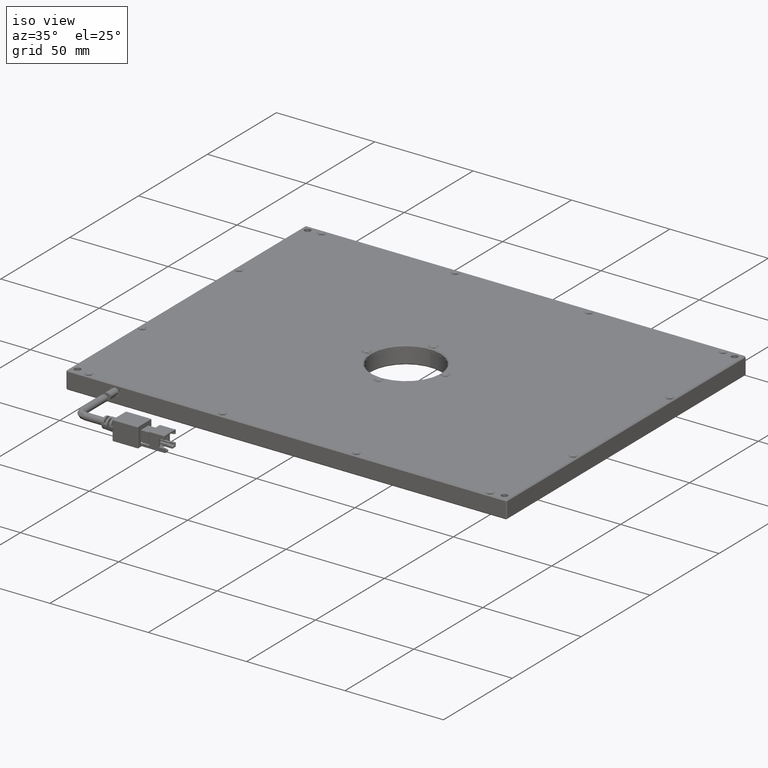
[diagram: clean part render]
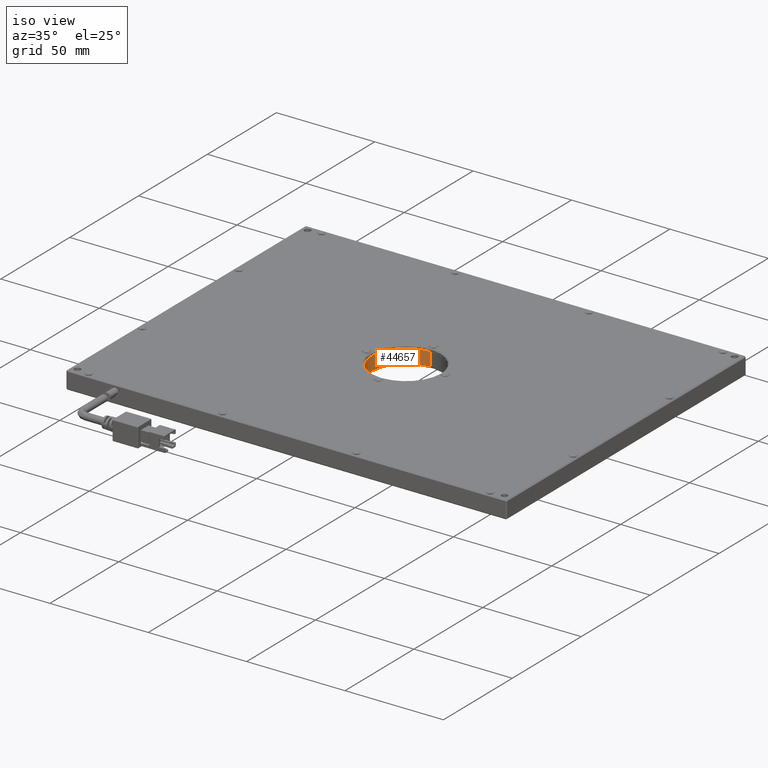
[diagram: same view with one face highlighted and labeled with its STEP entity id]
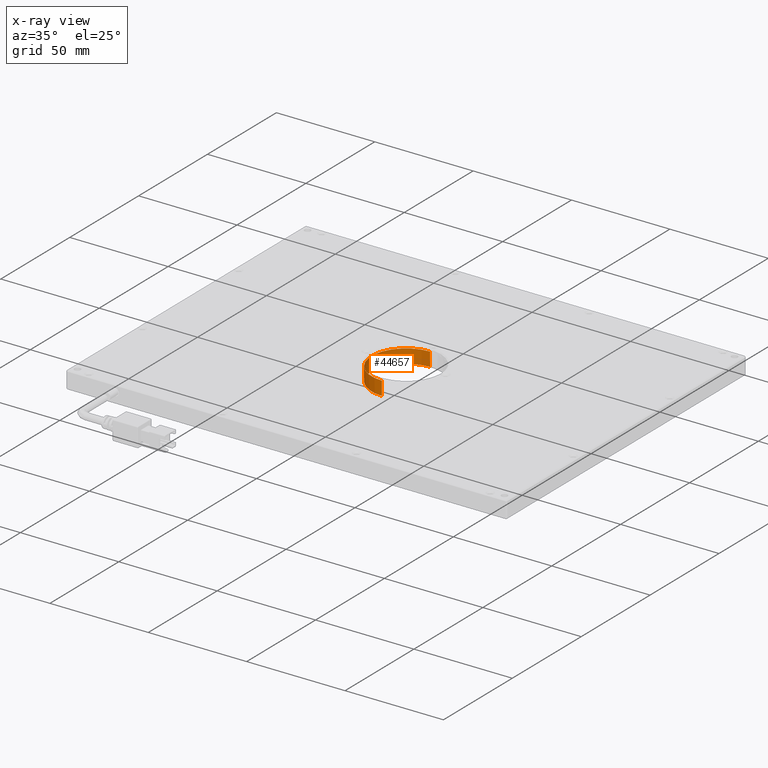
[diagram: x-ray of the same camera — body ghosted, the highlighted face saturated]
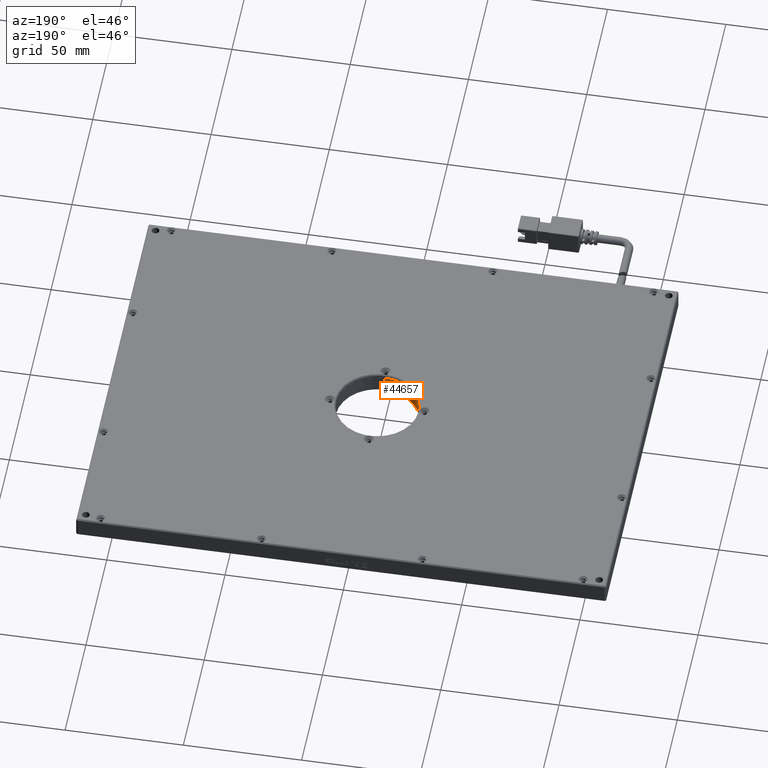
[diagram: same view with one face highlighted and labeled with its STEP entity id]
A machine part, iso view. The second image highlights one B-rep face of the part: STEP entity #44657.
The next image is the same camera in x-ray: the body ghosted, the highlighted face saturated — about 0% of this face is hidden behind the body in this view.
A second angle (auxiliary view) of the same face is appended — the face is thin or edge-on in the first view.
In plain terms, the highlighted cylindrical surface (partial cylindrical patch) has radius 17.5 mm, axis along (-0, -0, 1).
Its self-contained STEP definition (entity closure, byte-faithful):
#2312 = CARTESIAN_POINT ( 'NONE',  ( 2.322974683544309900, -12.30746835443039300, -3.250000000000002700 ) ) ;
#2968 = DIRECTION ( 'NONE',  ( 0.0000000000000000000, -1.000000000000000000, 0.0000000000000000000 ) ) ;
#3419 = CARTESIAN_POINT ( 'NONE',  ( 2.322974683544309900, -12.30746835443039300, 3.750000000000000000 ) ) ;
#4082 = EDGE_CURVE ( 'NONE', #10769, #7135, #22204, .T. ) ;
#4476 = FACE_OUTER_BOUND ( 'NONE', #42710, .T. ) ;
#4683 = CARTESIAN_POINT ( 'NONE',  ( 2.322974683544309900, -12.30746835443039300, 3.750000000000000400 ) ) ;
#5665 = EDGE_CURVE ( 'NONE', #29310, #35606, #26744, .T. ) ;
#7135 = VERTEX_POINT ( 'NONE', #37055 ) ;
#7333 = EDGE_CURVE ( 'NONE', #40707, #29310, #33863, .T. ) ;
#7801 = DIRECTION ( 'NONE',  ( 0.0000000000000000000, -1.000000000000000000, 0.0000000000000000000 ) ) ;
#8001 = ORIENTED_EDGE ( 'NONE', *, *, #41700, .T. ) ;
#9092 = ORIENTED_EDGE ( 'NONE', *, *, #5665, .F. ) ;
#10769 = VERTEX_POINT ( 'NONE', #32562 ) ;
#10798 = ORIENTED_EDGE ( 'NONE', *, *, #4082, .T. ) ;
#13706 = ORIENTED_EDGE ( 'NONE', *, *, #25026, .T. ) ;
#15635 = DIRECTION ( 'NONE',  ( -0.0000000000000000000, -0.0000000000000000000, 1.000000000000000000 ) ) ;
#22024 = CARTESIAN_POINT ( 'NONE',  ( 2.322974683544309900, 5.192531645569604700, -3.250000000000002700 ) ) ;
#22204 = CIRCLE ( 'NONE', #32644, 17.49999999999999600 ) ;
#22598 = DIRECTION ( 'NONE',  ( 0.0000000000000000000, 0.0000000000000000000, -1.000000000000000000 ) ) ;
#22997 = CARTESIAN_POINT ( 'NONE',  ( 2.322974683544309900, 5.192531645569604700, 3.750000000000000000 ) ) ;
#23159 = DIRECTION ( 'NONE',  ( -0.0000000000000000000, -0.0000000000000000000, 1.000000000000000000 ) ) ;
#25026 = EDGE_CURVE ( 'NONE', #7135, #35606, #30766, .T. ) ;
#25769 = DIRECTION ( 'NONE',  ( -0.0000000000000000000, -0.0000000000000000000, 1.000000000000000000 ) ) ;
#25963 = DIRECTION ( 'NONE',  ( 0.0000000000000000000, 0.0000000000000000000, -1.000000000000000000 ) ) ;
#26744 = CIRCLE ( 'NONE', #40216, 17.49999999999999600 ) ;
#29310 = VERTEX_POINT ( 'NONE', #4683 ) ;
#29361 = ORIENTED_EDGE ( 'NONE', *, *, #7333, .F. ) ;
#30679 = CARTESIAN_POINT ( 'NONE',  ( 2.322974683544309900, 5.192531645569604700, -3.250000000000002700 ) ) ;
#30766 = LINE ( 'NONE', #34174, #42230 ) ;
#31694 = CARTESIAN_POINT ( 'NONE',  ( 2.322974683544312100, 22.69253164556960200, 3.750000000000000400 ) ) ;
#32562 = CARTESIAN_POINT ( 'NONE',  ( -15.17702531645568900, 5.192531645569604700, -3.250000000000002700 ) ) ;
#32644 = AXIS2_PLACEMENT_3D ( 'NONE', #22024, #48307, #36847 ) ;
#33863 = LINE ( 'NONE', #3419, #48291 ) ;
#34174 = CARTESIAN_POINT ( 'NONE',  ( 2.322974683544312100, 22.69253164556960200, 3.750000000000000000 ) ) ;
#34716 = DIRECTION ( 'NONE',  ( 0.0000000000000000000, 1.000000000000000000, 0.0000000000000000000 ) ) ;
#35606 = VERTEX_POINT ( 'NONE', #31694 ) ;
#36847 = DIRECTION ( 'NONE',  ( 0.0000000000000000000, 1.000000000000000000, 0.0000000000000000000 ) ) ;
#37055 = CARTESIAN_POINT ( 'NONE',  ( 2.322974683544312100, 22.69253164556960200, -3.250000000000002700 ) ) ;
#40216 = AXIS2_PLACEMENT_3D ( 'NONE', #49068, #25963, #2968 ) ;
#40707 = VERTEX_POINT ( 'NONE', #2312 ) ;
#41700 = EDGE_CURVE ( 'NONE', #40707, #10769, #45760, .T. ) ;
#42230 = VECTOR ( 'NONE', #25769, 1000.000000000000000 ) ;
#42710 = EDGE_LOOP ( 'NONE', ( #8001, #10798, #13706, #9092, #29361 ) ) ;
#44657 = ADVANCED_FACE ( 'NONE', ( #4476 ), #45383, .F. ) ;
#45383 = CYLINDRICAL_SURFACE ( 'NONE', #47810, 17.49999999999999600 ) ;
#45760 = CIRCLE ( 'NONE', #47953, 17.49999999999999600 ) ;
#47810 = AXIS2_PLACEMENT_3D ( 'NONE', #22997, #23159, #7801 ) ;
#47953 = AXIS2_PLACEMENT_3D ( 'NONE', #30679, #22598, #34716 ) ;
#48291 = VECTOR ( 'NONE', #15635, 1000.000000000000000 ) ;
#48307 = DIRECTION ( 'NONE',  ( 0.0000000000000000000, 0.0000000000000000000, -1.000000000000000000 ) ) ;
#49068 = CARTESIAN_POINT ( 'NONE',  ( 2.322974683544309900, 5.192531645569604700, 3.750000000000000400 ) ) ;